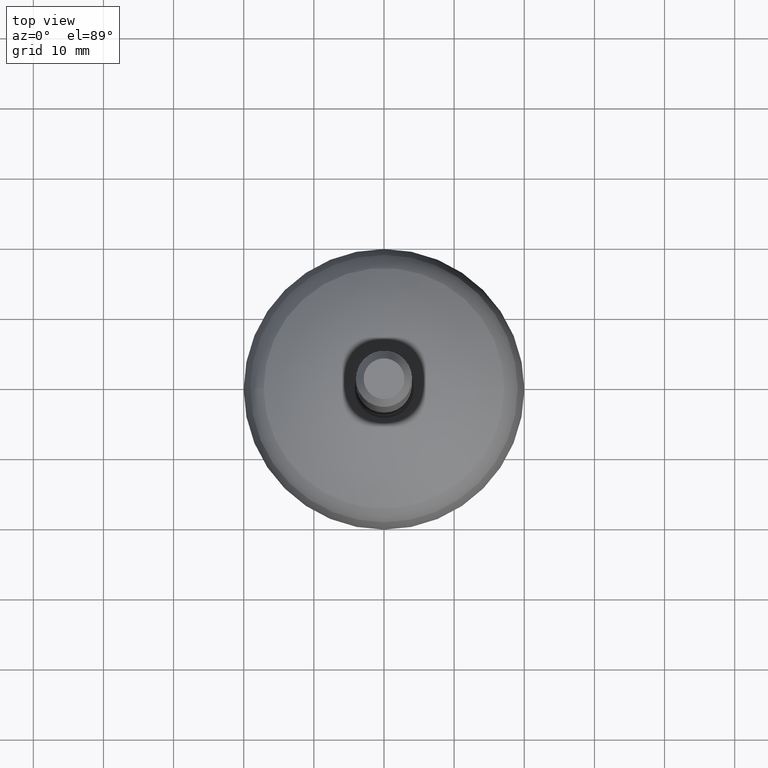
[diagram: clean part render]
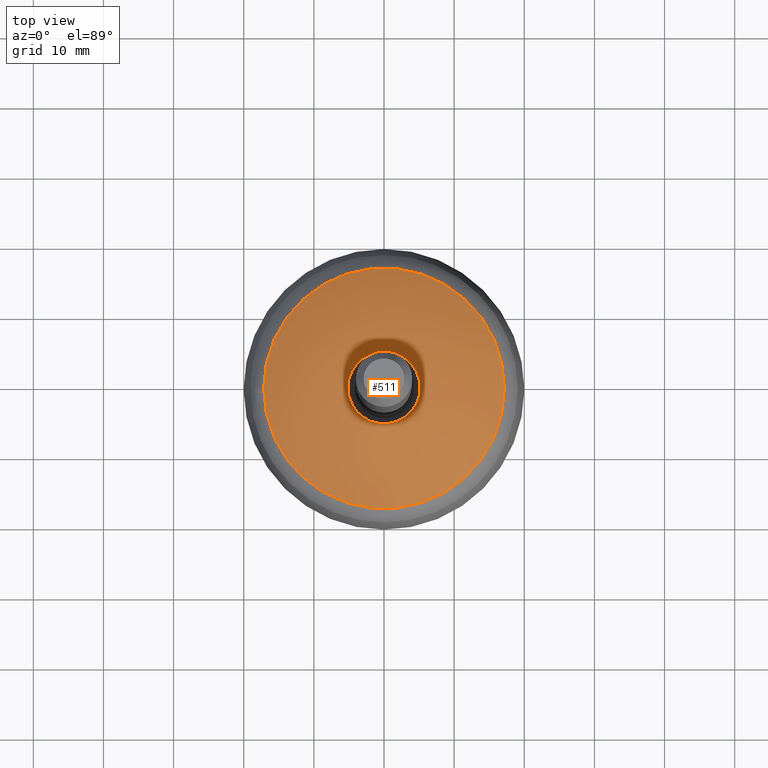
[diagram: same view with one face highlighted and labeled with its STEP entity id]
A machine part, top view. The second image highlights one B-rep face of the part: STEP entity #511.
In plain terms, the highlighted face is a freeform B-spline surface patch.
Its self-contained STEP definition (entity closure, byte-faithful):
#430=CARTESIAN_POINT('',(5.149953693612884,-0.000000291325369,13.497222739098055));
#431=CARTESIAN_POINT('',(11.704503779794427,-0.000000662106707,12.452972633470692));
#432=CARTESIAN_POINT('',(17.152359735133544,-0.000000970283973,8.661739245080918));
#433=CARTESIAN_POINT('',(5.149953984938277,5.149953693612893,13.497222739098055));
#434=CARTESIAN_POINT('',(11.704504441901173,11.704503779794447,12.452972633470692));
#435=CARTESIAN_POINT('',(17.152360705417571,17.152359735133572,8.661739245080916));
#436=CARTESIAN_POINT('',(0.0,5.149953693612894,13.497222739098055));
#437=CARTESIAN_POINT('',(0.0,11.704503779794450,12.452972633470692));
#438=CARTESIAN_POINT('',(0.0,17.152359735133572,8.661739245080918));
#439=CARTESIAN_POINT('',(-5.149953693612891,5.149953693612898,13.497222739098053));
#440=CARTESIAN_POINT('',(-11.704503779794441,11.704503779794447,12.452972633470688));
#441=CARTESIAN_POINT('',(-17.152359735133569,17.152359735133572,8.661739245080916));
#442=CARTESIAN_POINT('',(-5.149953693612893,5.857621E-016,13.497222739098055));
#443=CARTESIAN_POINT('',(-11.704503779794448,5.857621E-016,12.452972633470692));
#444=CARTESIAN_POINT('',(-17.152359735133572,5.857621E-016,8.661739245080918));
#445=CARTESIAN_POINT('',(-5.149953693612897,-5.149953693612891,13.497222739098053));
#446=CARTESIAN_POINT('',(-11.704503779794445,-11.704503779794441,12.452972633470688));
#447=CARTESIAN_POINT('',(-17.152359735133572,-17.152359735133569,8.661739245080916));
#448=CARTESIAN_POINT('',(0.0,-5.149953693612893,13.497222739098055));
#449=CARTESIAN_POINT('',(0.0,-11.704503779794448,12.452972633470692));
#450=CARTESIAN_POINT('',(0.0,-17.152359735133572,8.661739245080918));
#451=CARTESIAN_POINT('',(5.149953984938270,-5.149953693612899,13.497222739098055));
#452=CARTESIAN_POINT('',(11.704504441901172,-11.704503779794448,12.452972633470692));
#453=CARTESIAN_POINT('',(17.152360705417571,-17.152359735133576,8.661739245080916));
#454=CARTESIAN_POINT('',(5.149953693612884,0.000000291325370,13.497222739098053));
#455=CARTESIAN_POINT('',(11.704503779794427,0.000000662106708,12.452972633470692));
#456=CARTESIAN_POINT('',(17.152359735133544,0.000000970283974,8.661739245080918));
#464=(BOUNDED_SURFACE()B_SPLINE_SURFACE(2,2,((#430,#433,#436,#439,#442,#445,#448,#451,#454),(#431,#434,#437,#440,#443,#446,#449,#452,#455),(#432,#435,#438,#441,#444,#447,#450,#453,#456)),.UNSPECIFIED.,.F.,.T.,.U.)B_SPLINE_SURFACE_WITH_KNOTS((3,3),(3,2,2,2,3),(0.057489635874851,0.196726207589558),(-1.000000E-008,0.250000000000000,0.500000000000000,0.750000000000000,1.000000010000000),.UNSPECIFIED.)GEOMETRIC_REPRESENTATION_ITEM()RATIONAL_B_SPLINE_SURFACE(((0.960788238542000,0.679379851582132,0.960788216029331,0.679379862838466,0.960788216029331,0.679379862838466,0.960788216029331,0.679379851582132,0.960788238542000),(0.923200293042205,0.652801161491503,0.923200271410276,0.652801172307467,0.923200271410276,0.652801172307467,0.923200271410276,0.652801161491503,0.923200293042205),(0.933549323216079,0.660119030613439,0.933549301341657,0.660119041550650,0.933549301341657,0.660119041550650,0.933549301341657,0.660119030613439,0.933549323216079)))REPRESENTATION_ITEM('')SURFACE());
#465=CARTESIAN_POINT('',(17.152358961276139,5.857621E-016,8.661739783618296));
#466=VERTEX_POINT('',#465);
#467=CARTESIAN_POINT('',(5.149954598277945,5.857621E-016,13.497222594969678));
#468=VERTEX_POINT('',#467);
#469=CARTESIAN_POINT('',(0.587307151389837,5.857621E-016,-15.141601547711279));
#470=DIRECTION('',(0.0,-1.0,0.0));
#471=DIRECTION('',(1.0,0.0,0.0));
#472=AXIS2_PLACEMENT_3D('',#469,#470,#471);
#473=CIRCLE('',#472,29.0);
#474=EDGE_CURVE('',#466,#468,#473,.T.);
#475=ORIENTED_EDGE('',*,*,#474,.F.);
#476=CARTESIAN_POINT('',(-17.152358961276139,5.857621E-016,8.661739783618298));
#477=VERTEX_POINT('',#476);
#478=CARTESIAN_POINT('',(0.0,5.857621E-016,8.661739783618298));
#479=DIRECTION('',(0.0,0.0,1.0));
#480=DIRECTION('',(-1.0,0.0,0.0));
#481=AXIS2_PLACEMENT_3D('',#478,#479,#480);
#482=CIRCLE('',#481,17.152358961276139);
#483=EDGE_CURVE('',#466,#477,#482,.T.);
#484=ORIENTED_EDGE('',*,*,#483,.T.);
#485=CARTESIAN_POINT('',(0.0,5.857621E-016,8.661739783618298));
#486=DIRECTION('',(0.0,0.0,1.0));
#487=DIRECTION('',(-1.0,0.0,0.0));
#488=AXIS2_PLACEMENT_3D('',#485,#486,#487);
#489=CIRCLE('',#488,17.152358961276139);
#490=EDGE_CURVE('',#477,#466,#489,.T.);
#491=ORIENTED_EDGE('',*,*,#490,.T.);
#492=ORIENTED_EDGE('',*,*,#474,.T.);
#493=CARTESIAN_POINT('',(-5.149954598277943,5.857621E-016,13.497222594969680));
#494=VERTEX_POINT('',#493);
#495=CARTESIAN_POINT('',(0.0,5.857621E-016,13.497222594969680));
#496=DIRECTION('',(0.0,0.0,1.0));
#497=DIRECTION('',(1.0,0.0,0.0));
#498=AXIS2_PLACEMENT_3D('',#495,#496,#497);
#499=CIRCLE('',#498,5.149954598277943);
#500=EDGE_CURVE('',#494,#468,#499,.T.);
#501=ORIENTED_EDGE('',*,*,#500,.F.);
#502=CARTESIAN_POINT('',(0.0,5.857621E-016,13.497222594969680));
#503=DIRECTION('',(0.0,0.0,1.0));
#504=DIRECTION('',(1.0,0.0,0.0));
#505=AXIS2_PLACEMENT_3D('',#502,#503,#504);
#506=CIRCLE('',#505,5.149954598277943);
#507=EDGE_CURVE('',#468,#494,#506,.T.);
#508=ORIENTED_EDGE('',*,*,#507,.F.);
#509=EDGE_LOOP('',(#475,#484,#491,#492,#501,#508));
#510=FACE_OUTER_BOUND('',#509,.T.);
#511=ADVANCED_FACE('',(#510),#464,.T.);